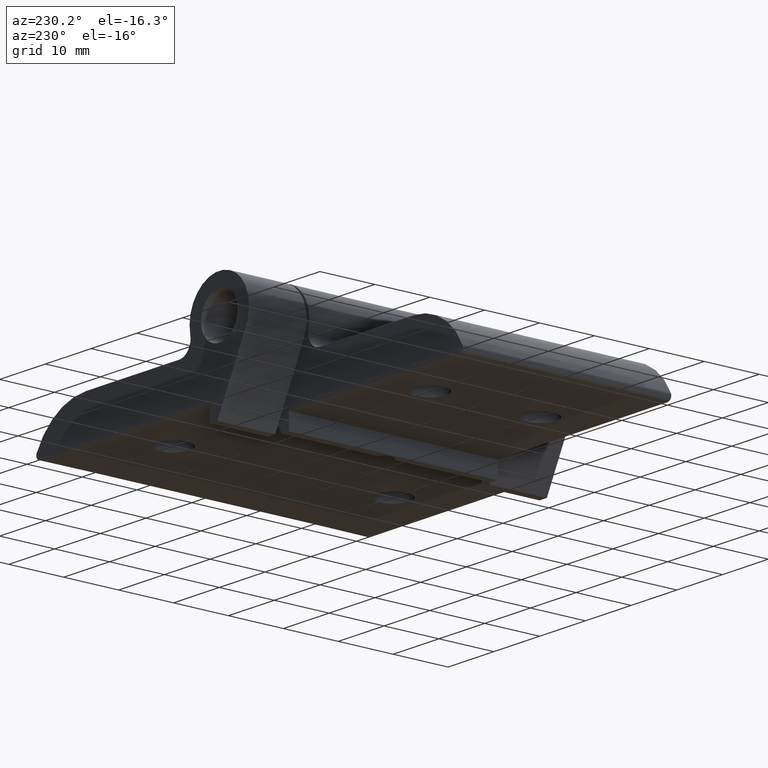
[diagram: clean part render]
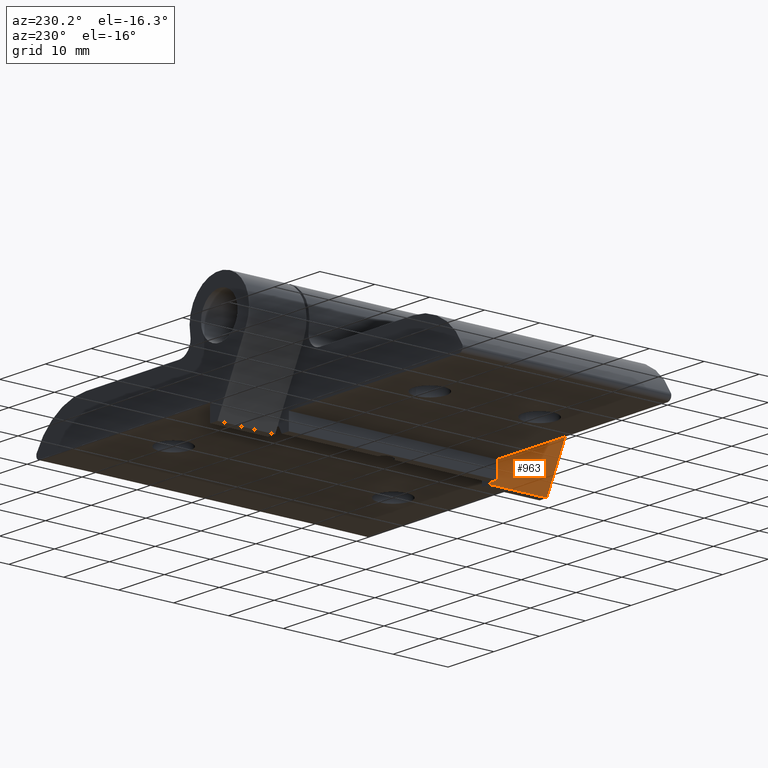
[diagram: same view with one face highlighted and labeled with its STEP entity id]
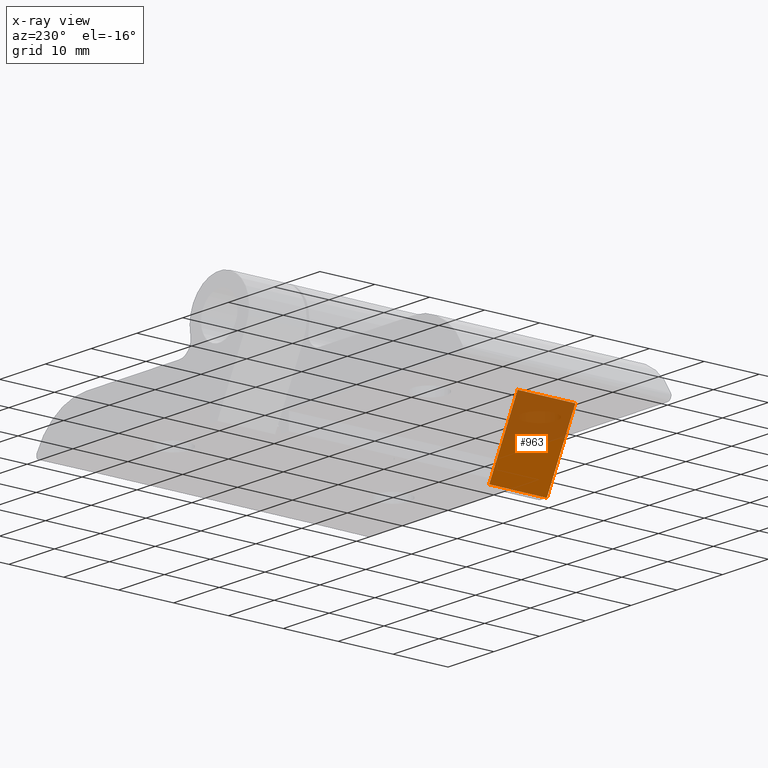
[diagram: x-ray of the same camera — body ghosted, the highlighted face saturated]
A machine part, auxiliary view. The second image highlights one B-rep face of the part: STEP entity #963.
The next image is the same camera in x-ray: the body ghosted, the highlighted face saturated — about 48% of this face is hidden behind the body in this view.
In plain terms, the highlighted planar face has unit normal (-0.8939, 0, -0.4482).
Its self-contained STEP definition (entity closure, byte-faithful):
#74=PLANE('',#1094);
#120=FACE_OUTER_BOUND('',#168,.T.);
#168=EDGE_LOOP('',(#728,#729,#730,#731));
#226=LINE('',#1499,#295);
#241=LINE('',#1542,#310);
#244=LINE('',#1549,#313);
#245=LINE('',#1550,#314);
#295=VECTOR('',#1221,10.);
#310=VECTOR('',#1260,10.);
#313=VECTOR('',#1267,10.);
#314=VECTOR('',#1268,10.);
#428=VERTEX_POINT('',#1496);
#429=VERTEX_POINT('',#1498);
#445=VERTEX_POINT('',#1540);
#447=VERTEX_POINT('',#1548);
#536=EDGE_CURVE('',#429,#428,#226,.T.);
#558=EDGE_CURVE('',#445,#428,#241,.T.);
#561=EDGE_CURVE('',#447,#445,#244,.T.);
#562=EDGE_CURVE('',#447,#429,#245,.T.);
#728=ORIENTED_EDGE('',*,*,#536,.T.);
#729=ORIENTED_EDGE('',*,*,#558,.F.);
#730=ORIENTED_EDGE('',*,*,#561,.F.);
#731=ORIENTED_EDGE('',*,*,#562,.T.);
#963=ADVANCED_FACE('',(#120),#74,.T.);
#1094=AXIS2_PLACEMENT_3D('',#1547,#1265,#1266);
#1221=DIRECTION('',(0.448207310925167,1.22582655611931E-17,-0.893929642887644));
#1260=DIRECTION('',(0.,1.,0.));
#1265=DIRECTION('center_axis',(-0.893929642887644,0.,-0.448207310925167));
#1266=DIRECTION('ref_axis',(-0.448207310925167,0.,0.893929642887644));
#1267=DIRECTION('',(0.448207310925167,0.,-0.893929642887644));
#1268=DIRECTION('',(0.,1.,0.));
#1496=CARTESIAN_POINT('',(0.399999999999999,-19.5,-15.3));
#1498=CARTESIAN_POINT('',(-5.81054267876969,-19.5,-2.91334752101359));
#1499=CARTESIAN_POINT('',(-1.65751512762906,-19.5,-11.1963771485993));
#1540=CARTESIAN_POINT('',(0.399999999999999,-30.,-15.3));
#1542=CARTESIAN_POINT('',(0.399999999999999,0.,-15.3));
#1547=CARTESIAN_POINT('Origin',(0.399999999999999,0.,-15.3));
#1548=CARTESIAN_POINT('',(-5.81054267876969,-30.,-2.91334752101359));
#1549=CARTESIAN_POINT('',(0.399999999999999,-30.,-15.3));
#1550=CARTESIAN_POINT('',(-5.81054267876969,0.,-2.91334752101359));